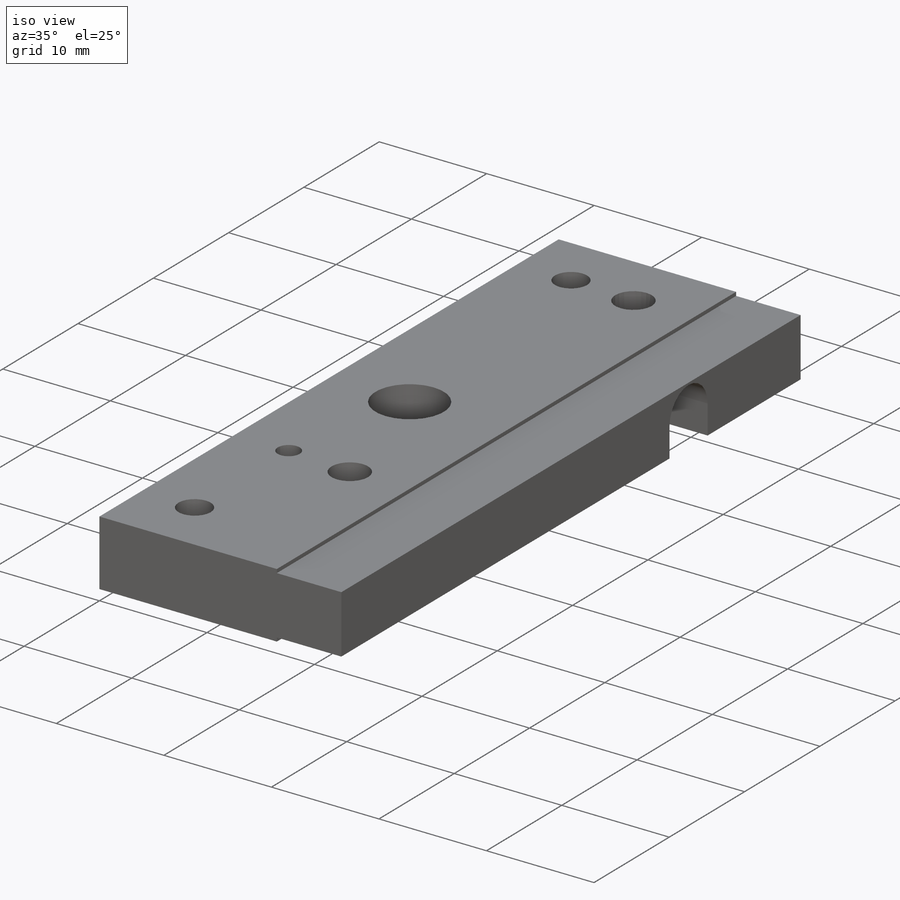
[diagram: iso view]
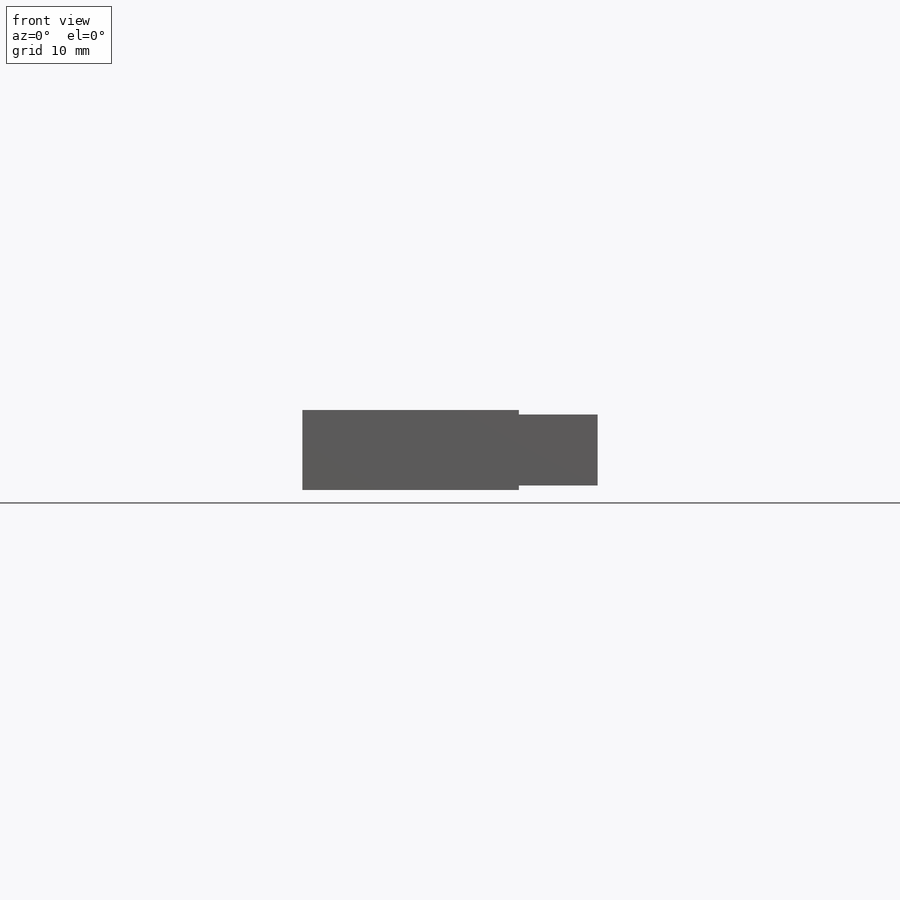
[diagram: front view]
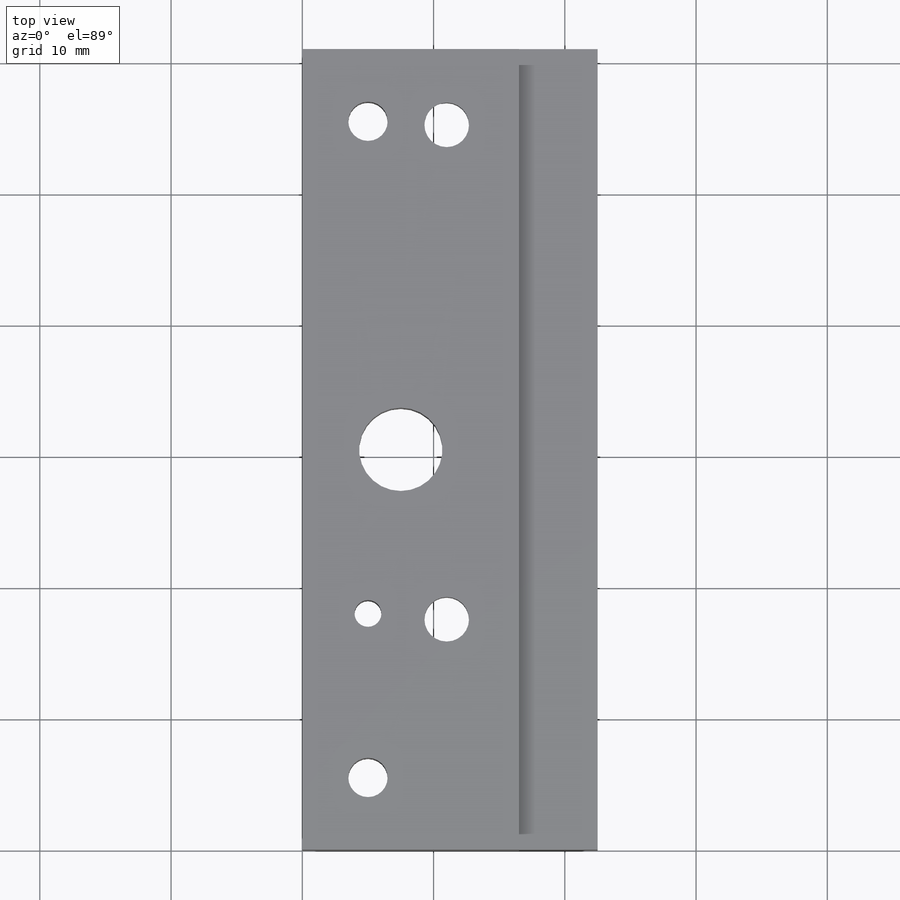
[diagram: top view]
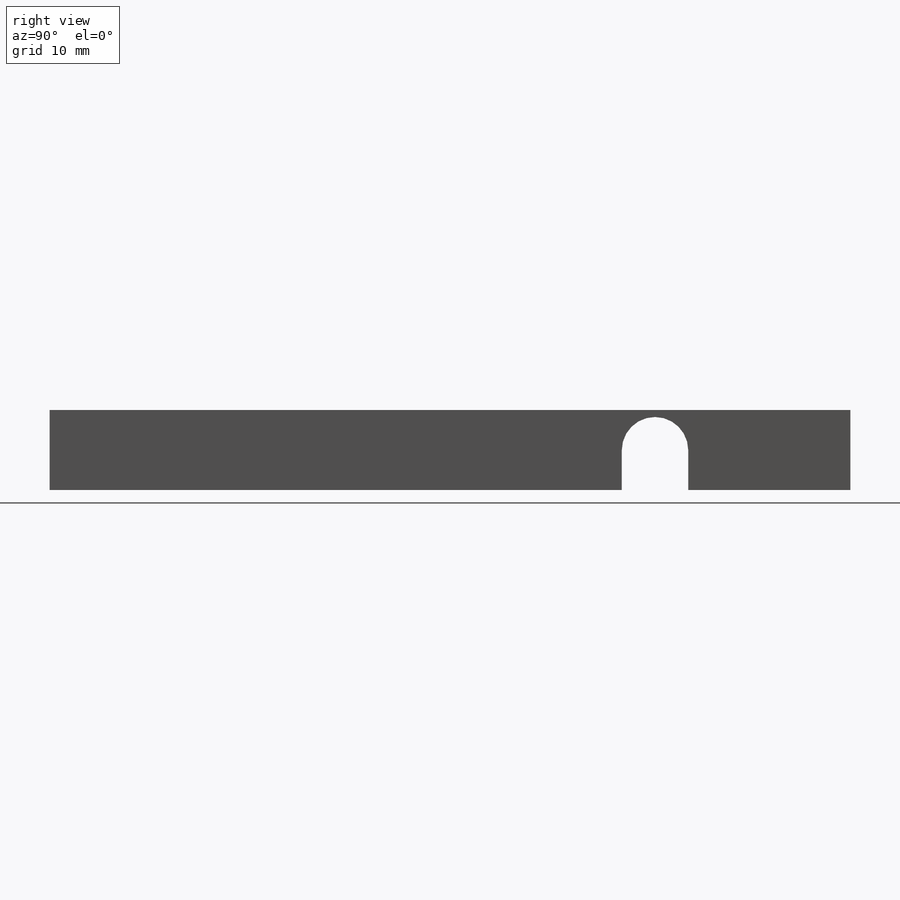
[diagram: right view]
SOLIDWORKS PART (.sldprt)
format: sldprt  version: not decoded by parser v0  size: 347,648 bytes
history: native  units: mm
features: sketch x11, cut_extrude x4, hole x3, thread x2, material x1, extrude x1 (+11 scaffold rows collapsed)
feature tree (33):
  scaffold x11  (default folders/planes/origin — collapsed)
  material  "2024-T3"
  sketch  "Sketch1"  dims[D1=61.0mm D2=6.1mm]
  extrude  "Boss-Extrude1"  Depth=22.5mm
  sketch  "Sketch2"  dims[D1=~5.41284mm D2=0.3mm]
  cut_extrude  "Cut-Extrude1"  Depth=6mm
  sketch  "Sketch5"  dims[c1.D1=5.0648mm c1.D2=14.881mm c1.D3=2.68mm c2.D2=14.881mm c2.D3=2.7254mm]
  cut_extrude  "Cut-Extrude3"  [1 undecoded]
  sketch  "Sketch6"  dims[c1.D2=6.35mm c1.D1=3.0mm c1.D3=6.0mm c2.D1=7.5mm]
  cut_extrude  "Cut-Extrude4"  [1 undecoded]
  sketch  "Sketch7"  dims[D1=3.0mm D2=5.0mm D3=25.0mm D4=25.0mm]
  cut_extrude  "Cut-Extrude5"  [1 undecoded]
  hole  "M2.5x0.45 Tapped Hole1"  Diameter=2.05mm Depth=6.1mm
  sketch  "Sketch11"  dims[D1=12.5mm]
  sketch  "Sketch10"  dims[hole-wizard template sketch: 60 standard entries collapsed; hole parameters kept: c18.Thru Tap Drill Depth=6.1mm]
  thread  "Hole Thread1"  Diameter=2.5mm  [1 undecoded]
  hole  "M2.5x0.45 Tapped Hole2"  Diameter=2.05mm Depth=7.3mm
  sketch  "Sketch13"  dims[D1=10.0mm]
  sketch  "Sketch12"  dims[hole-wizard template sketch: 47 standard entries collapsed; hole parameters kept: c15.Tap Drill Depth=7.3mm c15.D3=~14.816244mm c15.Drill Angle=118.0deg]
  thread  "Hole Thread2"  Diameter=5mm  [1 undecoded]
  hole  "CBORE for M3 Pan Head Machine Screw1"  Diameter=3.4mm Depth=6.1mm
  sketch  "Sketch15"  dims[D1=37.675mm D2=5.772mm]
  sketch  "Sketch14"  dims[hole-wizard template sketch: 42 standard entries collapsed; hole parameters kept: c12.Thru Hole Depth=6.1mm c12.C'Bore Dia.=6.5mm c12.C'Bore Depth=2.2mm]
decode coverage: 18 of 21 modeling features carry decoded parameters
note: ~ marks probable driven/reference dimensions
note: 5 parameter values undecoded
summary: no parameter record found for 3 features
note: suppression state not decoded; provenance and decode notes live in map.json
